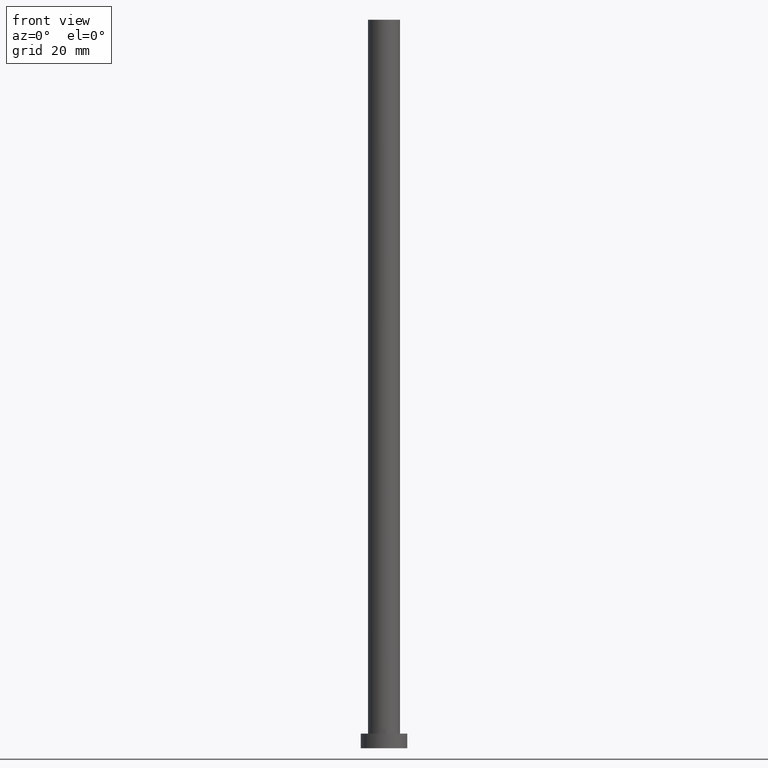
[diagram: clean part render]
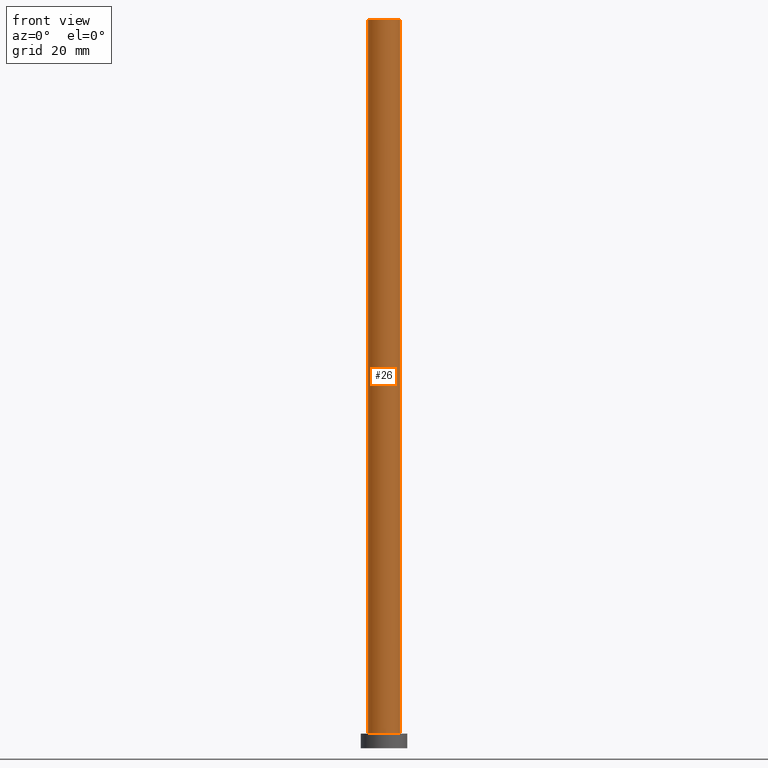
[diagram: same view with one face highlighted and labeled with its STEP entity id]
A machine part, front view. The second image highlights one B-rep face of the part: STEP entity #26.
In plain terms, the highlighted cylindrical surface (edge-blend (fillet) strip) has radius 5.5 mm, axis along (-0, -0, -1).
Its self-contained STEP definition (entity closure, byte-faithful):
#5 = AXIS2_PLACEMENT_3D ( 'NONE', #110, #148, #72 ) ;
#6 = EDGE_CURVE ( 'NONE', #10, #141, #231, .T. ) ;
#10 = VERTEX_POINT ( 'NONE', #59 ) ;
#12 = CARTESIAN_POINT ( 'NONE',  ( -5.500000000000000000, 0.000000000000000000, 250.0000000000000000 ) ) ;
#16 = CYLINDRICAL_SURFACE ( 'NONE', #5, 5.500000000000000000 ) ;
#23 = DIRECTION ( 'NONE',  ( 0.000000000000000000, 0.000000000000000000, 1.000000000000000000 ) ) ;
#26 = ADVANCED_FACE ( 'NONE', ( #123 ), #16, .T. ) ;
#54 = ORIENTED_EDGE ( 'NONE', *, *, #138, .T. ) ;
#55 = EDGE_CURVE ( 'NONE', #141, #145, #147, .T. ) ;
#57 = CARTESIAN_POINT ( 'NONE',  ( 5.500000000000000000, 6.735557395310442023E-16, 250.0000000000000000 ) ) ;
#59 = CARTESIAN_POINT ( 'NONE',  ( -5.500000000000000000, 0.000000000000000000, 250.0000000000000000 ) ) ;
#63 = AXIS2_PLACEMENT_3D ( 'NONE', #187, #23, #198 ) ;
#72 = DIRECTION ( 'NONE',  ( -1.000000000000000000, 0.000000000000000000, 0.000000000000000000 ) ) ;
#76 = CARTESIAN_POINT ( 'NONE',  ( 5.500000000000000000, 6.735557395310442023E-16, 5.000000000000000000 ) ) ;
#77 = DIRECTION ( 'NONE',  ( -0.000000000000000000, -0.000000000000000000, -1.000000000000000000 ) ) ;
#87 = EDGE_LOOP ( 'NONE', ( #166, #186, #54, #173 ) ) ;
#91 = DIRECTION ( 'NONE',  ( 1.000000000000000000, 0.000000000000000000, 0.000000000000000000 ) ) ;
#99 = CIRCLE ( 'NONE', #63, 5.500000000000000000 ) ;
#110 = CARTESIAN_POINT ( 'NONE',  ( 0.000000000000000000, 0.000000000000000000, 250.0000000000000000 ) ) ;
#111 = CARTESIAN_POINT ( 'NONE',  ( -5.500000000000000000, 0.000000000000000000, 5.000000000000000000 ) ) ;
#123 = FACE_OUTER_BOUND ( 'NONE', #87, .T. ) ;
#126 = LINE ( 'NONE', #12, #156 ) ;
#127 = VECTOR ( 'NONE', #210, 1000.000000000000000 ) ;
#138 = EDGE_CURVE ( 'NONE', #10, #242, #126, .T. ) ;
#141 = VERTEX_POINT ( 'NONE', #190 ) ;
#145 = VERTEX_POINT ( 'NONE', #76 ) ;
#147 = LINE ( 'NONE', #57, #127 ) ;
#148 = DIRECTION ( 'NONE',  ( -0.000000000000000000, -0.000000000000000000, -1.000000000000000000 ) ) ;
#152 = DIRECTION ( 'NONE',  ( 0.000000000000000000, 0.000000000000000000, 1.000000000000000000 ) ) ;
#156 = VECTOR ( 'NONE', #77, 1000.000000000000000 ) ;
#166 = ORIENTED_EDGE ( 'NONE', *, *, #55, .F. ) ;
#173 = ORIENTED_EDGE ( 'NONE', *, *, #189, .T. ) ;
#186 = ORIENTED_EDGE ( 'NONE', *, *, #6, .F. ) ;
#187 = CARTESIAN_POINT ( 'NONE',  ( 0.000000000000000000, 0.000000000000000000, 5.000000000000000000 ) ) ;
#189 = EDGE_CURVE ( 'NONE', #242, #145, #99, .T. ) ;
#190 = CARTESIAN_POINT ( 'NONE',  ( 5.500000000000000000, 6.735557395310442023E-16, 250.0000000000000000 ) ) ;
#198 = DIRECTION ( 'NONE',  ( 1.000000000000000000, 0.000000000000000000, 0.000000000000000000 ) ) ;
#210 = DIRECTION ( 'NONE',  ( -0.000000000000000000, -0.000000000000000000, -1.000000000000000000 ) ) ;
#231 = CIRCLE ( 'NONE', #244, 5.500000000000000000 ) ;
#242 = VERTEX_POINT ( 'NONE', #111 ) ;
#244 = AXIS2_PLACEMENT_3D ( 'NONE', #245, #152, #91 ) ;
#245 = CARTESIAN_POINT ( 'NONE',  ( 0.000000000000000000, 0.000000000000000000, 250.0000000000000000 ) ) ;